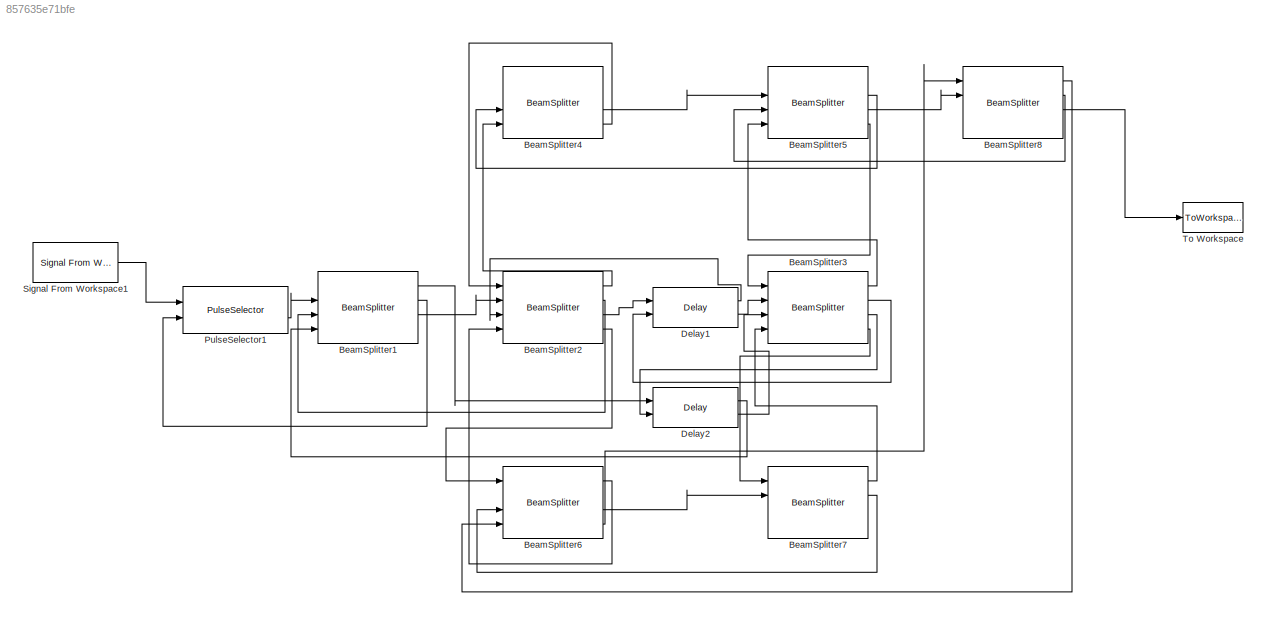
MODEL slx_857635e71bfe
KIND model
CONFIG PreLoadFcn = initialize;
BLOCK [Reference] BeamSplitter1  REF=BlockLib/BeamSplitter
  BackReflectance = 0.001
  Ghost = 0.01
  Ports = [4, 4]
  Reflectance = 0.50
  SourceBlock = BlockLib/BeamSplitter
  Transmittance = 0.50
BLOCK [Reference] BeamSplitter2  REF=BlockLib/BeamSplitter
  BackReflectance = 0.001
  Ghost = 0.01
  Ports = [4, 4]
  Reflectance = 0.50
  SourceBlock = BlockLib/BeamSplitter
  Transmittance = 0.50
BLOCK [Reference] BeamSplitter3  REF=BlockLib/BeamSplitter
  BackReflectance = 0.001
  Ghost = 0.01
  Ports = [4, 4]
  Reflectance = 0.50
  SourceBlock = BlockLib/BeamSplitter
  Transmittance = 0.50
BLOCK [Reference] BeamSplitter4  REF=BlockLib/BeamSplitter
  BackReflectance = 0.001
  Ghost = 0.01
  Ports = [4, 4]
  Reflectance = 0.50
  SourceBlock = BlockLib/BeamSplitter
  Transmittance = 0.50
BLOCK [Reference] BeamSplitter5  REF=BlockLib/BeamSplitter
  BackReflectance = 0.001
  Ghost = 0.01
  Ports = [4, 4]
  Reflectance = 0.50
  SourceBlock = BlockLib/BeamSplitter
  Transmittance = 0.50
BLOCK [Reference] BeamSplitter6  REF=BlockLib/BeamSplitter
  BackReflectance = 0.001
  Ghost = 0.01
  Ports = [4, 4]
  Reflectance = 0.50
  SourceBlock = BlockLib/BeamSplitter
  Transmittance = 0.50
BLOCK [Reference] BeamSplitter7  REF=BlockLib/BeamSplitter
  BackReflectance = 0.001
  Ghost = 0.01
  Ports = [4, 4]
  Reflectance = 0.50
  SourceBlock = BlockLib/BeamSplitter
  Transmittance = 0.50
BLOCK [Reference] BeamSplitter8  REF=BlockLib/BeamSplitter
  BackReflectance = 0.001
  Ghost = 0.01
  Ports = [4, 4]
  Reflectance = 0.50
  SourceBlock = BlockLib/BeamSplitter
  Transmittance = 0.50
BLOCK [Reference] Delay1  REF=BlockLib/Delay
  DelayAmt = 10e-9
  Ports = [2, 2]
  SourceBlock = BlockLib/Delay
BLOCK [Reference] Delay2  REF=BlockLib/Delay
  DelayAmt = 10e-9
  Ports = [2, 2]
  SourceBlock = BlockLib/Delay
BLOCK [Reference] PulseSelector1  REF=BlockLib/PulseSelector
  ControlPowers = [0.5000, 1.0000,1.0000, 1.0000, 0.5000]
  PCTimings = [-1,1,38,40,103,105,168,170,220,274]*1e-9
  Ports = [2, 2]
  SourceBlock = BlockLib/PulseSelector
BLOCK [Reference] Signal From Workspace1  REF=dspsrcs4/Signal From
Workspace
  OutputAfterFinalValue = Setting to zero
  Ports = [0, 1]
  SourceBlock = dspsrcs4/Signal From\nWorkspace
  SourceType = Signal From Workspace
  Ts = 1
  X = inputSequence(13*10^-9,1,0,130*10^-9)
  ignoreOrWarnInputAndFrameLengths = off
  nsamps = 1
BLOCK [ToWorkspace] To Workspace
  FixptAsFi = on
  MaxDataPoints = inf
  Ports = [1]
  SampleTime = -1
  SaveFormat = Timeseries
  VariableName = simout
LINE BeamSplitter1:1 -> Delay2:1
LINE BeamSplitter1:2 -> PulseSelector1:2
LINE BeamSplitter1:3 -> BeamSplitter2:2
LINE BeamSplitter2:1 -> BeamSplitter4:4
LINE BeamSplitter2:2 -> BeamSplitter1:3
LINE BeamSplitter2:3 -> Delay1:1
LINE BeamSplitter2:4 -> BeamSplitter6:1
LINE BeamSplitter3:1 -> BeamSplitter5:4
LINE BeamSplitter3:2 -> Delay1:2
LINE BeamSplitter3:3 -> Delay2:2
LINE BeamSplitter3:4 -> BeamSplitter7:1
LINE BeamSplitter4:3 -> BeamSplitter5:2
LINE BeamSplitter4:4 -> BeamSplitter2:1
LINE BeamSplitter5:2 -> BeamSplitter4:3
LINE BeamSplitter5:3 -> BeamSplitter8:2
LINE BeamSplitter5:4 -> BeamSplitter3:1
LINE BeamSplitter6:1 -> BeamSplitter2:4
LINE BeamSplitter6:3 -> BeamSplitter7:2
LINE BeamSplitter6:4 -> BeamSplitter8:1
LINE BeamSplitter7:1 -> BeamSplitter3:4
LINE BeamSplitter7:2 -> BeamSplitter6:3
LINE BeamSplitter8:1 -> BeamSplitter6:4
LINE BeamSplitter8:2 -> BeamSplitter5:3
LINE BeamSplitter8:3 -> To Workspace:1
LINE Delay1:1 -> BeamSplitter2:3
LINE Delay1:2 -> BeamSplitter3:2
LINE Delay2:1 -> BeamSplitter1:4
LINE Delay2:2 -> BeamSplitter3:3
LINE PulseSelector1:2 -> BeamSplitter1:2
LINE Signal From Workspace1:1 -> PulseSelector1:1
